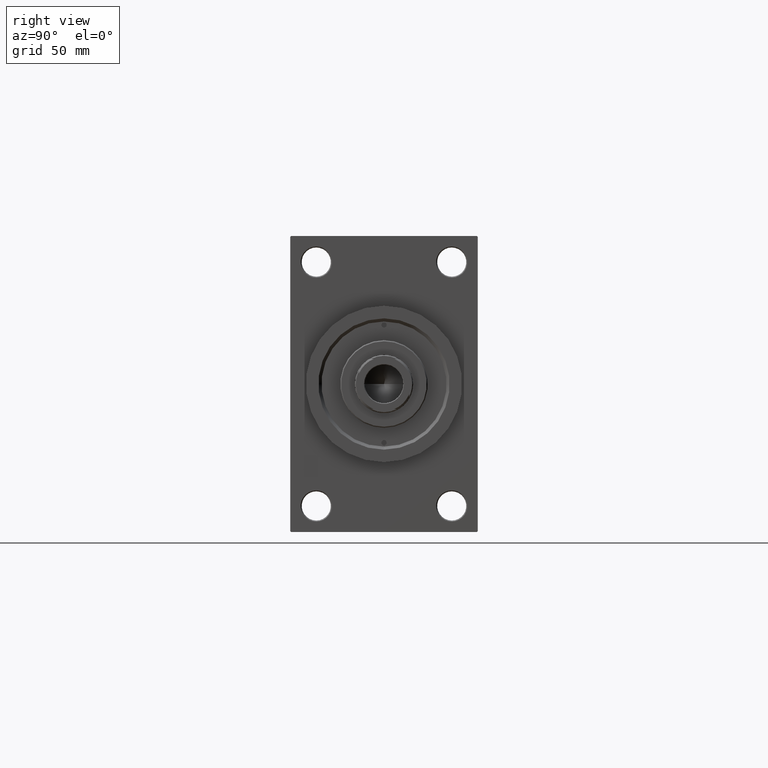
[diagram: clean part render]
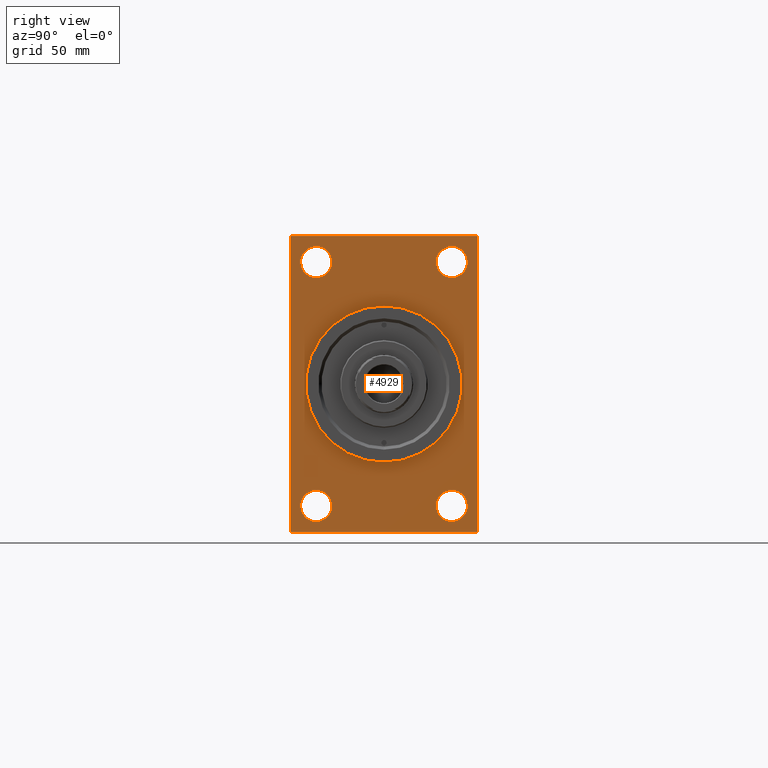
[diagram: same view with one face highlighted and labeled with its STEP entity id]
A machine part, right view. The second image highlights one B-rep face of the part: STEP entity #4929.
In plain terms, the highlighted planar face has unit normal (-1, 0, 0).
Its self-contained STEP definition (entity closure, byte-faithful):
#728 = DIRECTION ( 'NONE',  ( 0.000000000000000000, 0.000000000000000000, 1.000000000000000000 ) ) ;
#1526 = EDGE_CURVE ( 'NONE', #21739, #6571, #4567, .T. ) ;
#1562 = DIRECTION ( 'NONE',  ( -1.000000000000000000, 0.000000000000000000, -0.000000000000000000 ) ) ;
#1708 = ORIENTED_EDGE ( 'NONE', *, *, #24348, .T. ) ;
#2159 = CARTESIAN_POINT ( 'NONE',  ( 245.0000000000000000, 4.592425496802575156E-15, -37.50000000000000711 ) ) ;
#2413 = FACE_BOUND ( 'NONE', #41799, .T. ) ;
#2835 = CARTESIAN_POINT ( 'NONE',  ( 245.0000000000000000, -44.99999999999997158, 70.99999999999998579 ) ) ;
#3256 = AXIS2_PLACEMENT_3D ( 'NONE', #23631, #38260, #20037 ) ;
#3400 = DIRECTION ( 'NONE',  ( 0.000000000000000000, 0.000000000000000000, 1.000000000000000000 ) ) ;
#3614 = AXIS2_PLACEMENT_3D ( 'NONE', #6248, #28289, #21109 ) ;
#3644 = DIRECTION ( 'NONE',  ( -1.000000000000000000, 0.000000000000000000, -0.000000000000000000 ) ) ;
#4567 = LINE ( 'NONE', #15820, #41725 ) ;
#4610 = DIRECTION ( 'NONE',  ( -1.000000000000000000, 0.000000000000000000, -0.000000000000000000 ) ) ;
#4696 = VECTOR ( 'NONE', #6683, 1000.000000000000000 ) ;
#4812 = VERTEX_POINT ( 'NONE', #24150 ) ;
#4929 = ADVANCED_FACE ( 'NONE', ( #34886, #31512, #11478, #39104, #2413, #46291 ), #17515, .F. ) ;
#5095 = EDGE_CURVE ( 'NONE', #32971, #25976, #44963, .T. ) ;
#5534 = ORIENTED_EDGE ( 'NONE', *, *, #17239, .T. ) ;
#6248 = CARTESIAN_POINT ( 'NONE',  ( 245.0000000000000000, 0.000000000000000000, 0.000000000000000000 ) ) ;
#6312 = DIRECTION ( 'NONE',  ( 1.000000000000000000, 0.000000000000000000, 0.000000000000000000 ) ) ;
#6399 = ORIENTED_EDGE ( 'NONE', *, *, #40926, .T. ) ;
#6461 = VECTOR ( 'NONE', #26910, 1000.000000000000114 ) ;
#6571 = VERTEX_POINT ( 'NONE', #41821 ) ;
#6683 = DIRECTION ( 'NONE',  ( 0.000000000000000000, 0.000000000000000000, -1.000000000000000000 ) ) ;
#6778 = CARTESIAN_POINT ( 'NONE',  ( 245.0000000000000000, -44.49999999999997158, -71.00000000000000000 ) ) ;
#6927 = CIRCLE ( 'NONE', #29129, 7.499999999999965361 ) ;
#7197 = ORIENTED_EDGE ( 'NONE', *, *, #10644, .T. ) ;
#7698 = DIRECTION ( 'NONE',  ( -0.000000000000000000, 0.7071067811865376918, 0.7071067811865573427 ) ) ;
#7784 = VERTEX_POINT ( 'NONE', #35702 ) ;
#7973 = DIRECTION ( 'NONE',  ( -1.000000000000000000, 0.000000000000000000, -0.000000000000000000 ) ) ;
#8411 = LINE ( 'NONE', #37657, #29152 ) ;
#8822 = EDGE_CURVE ( 'NONE', #16542, #7784, #21311, .T. ) ;
#8855 = ORIENTED_EDGE ( 'NONE', *, *, #1526, .F. ) ;
#9197 = CARTESIAN_POINT ( 'NONE',  ( 245.0000000000000000, 32.50000000000000711, -65.99999999999997158 ) ) ;
#9406 = CARTESIAN_POINT ( 'NONE',  ( 245.0000000000000000, 0.000000000000000000, 37.50000000000000711 ) ) ;
#9510 = CARTESIAN_POINT ( 'NONE',  ( 245.0000000000000000, -44.50000000000000000, -71.00000000000000000 ) ) ;
#9732 = AXIS2_PLACEMENT_3D ( 'NONE', #40765, #22543, #728 ) ;
#9790 = DIRECTION ( 'NONE',  ( -1.000000000000000000, 0.000000000000000000, -0.000000000000000000 ) ) ;
#9948 = CARTESIAN_POINT ( 'NONE',  ( 245.0000000000000000, 44.50000000000006395, -70.99999999999998579 ) ) ;
#10149 = CARTESIAN_POINT ( 'NONE',  ( 245.0000000000000000, 45.00000000000001421, -70.99999999999998579 ) ) ;
#10644 = EDGE_CURVE ( 'NONE', #15797, #28914, #45762, .T. ) ;
#11342 = CIRCLE ( 'NONE', #42745, 37.50000000000000711 ) ;
#11478 = FACE_BOUND ( 'NONE', #42357, .T. ) ;
#12884 = EDGE_CURVE ( 'NONE', #28914, #15797, #22123, .T. ) ;
#13354 = ORIENTED_EDGE ( 'NONE', *, *, #5095, .T. ) ;
#13725 = AXIS2_PLACEMENT_3D ( 'NONE', #18760, #4610, #33863 ) ;
#14057 = VECTOR ( 'NONE', #38751, 1000.000000000000114 ) ;
#14081 = CARTESIAN_POINT ( 'NONE',  ( 245.0000000000000000, 44.50000000000007105, 71.00000000000000000 ) ) ;
#14186 = VERTEX_POINT ( 'NONE', #29954 ) ;
#14833 = DIRECTION ( 'NONE',  ( 0.000000000000000000, -1.000000000000000000, -1.541976423090495387E-16 ) ) ;
#15797 = VERTEX_POINT ( 'NONE', #9197 ) ;
#15820 = CARTESIAN_POINT ( 'NONE',  ( 245.0000000000000000, 45.00000000000002132, 71.00000000000000000 ) ) ;
#16036 = VERTEX_POINT ( 'NONE', #9948 ) ;
#16542 = VERTEX_POINT ( 'NONE', #14081 ) ;
#17182 = VERTEX_POINT ( 'NONE', #36276 ) ;
#17185 = VERTEX_POINT ( 'NONE', #6778 ) ;
#17236 = CARTESIAN_POINT ( 'NONE',  ( 245.0000000000000000, -44.99999999999997158, 70.50000000000000000 ) ) ;
#17239 = EDGE_CURVE ( 'NONE', #14186, #35605, #6927, .T. ) ;
#17515 = PLANE ( 'NONE',  #3614 ) ;
#17978 = DIRECTION ( 'NONE',  ( 0.000000000000000000, 0.000000000000000000, 1.000000000000000000 ) ) ;
#18193 = EDGE_CURVE ( 'NONE', #7784, #42201, #43649, .T. ) ;
#18685 = DIRECTION ( 'NONE',  ( -1.000000000000000000, 0.000000000000000000, -0.000000000000000000 ) ) ;
#18760 = CARTESIAN_POINT ( 'NONE',  ( 245.0000000000000000, -32.50000000000000000, -58.49999999999999289 ) ) ;
#18838 = CARTESIAN_POINT ( 'NONE',  ( 245.0000000000000000, -32.50000000000000000, 58.50000000000000711 ) ) ;
#19007 = EDGE_CURVE ( 'NONE', #42201, #20212, #35464, .T. ) ;
#19502 = EDGE_CURVE ( 'NONE', #25976, #32971, #23080, .T. ) ;
#19697 = ORIENTED_EDGE ( 'NONE', *, *, #8822, .T. ) ;
#19846 = ORIENTED_EDGE ( 'NONE', *, *, #32380, .T. ) ;
#20037 = DIRECTION ( 'NONE',  ( 0.000000000000000000, 0.000000000000000000, 1.000000000000000000 ) ) ;
#20104 = CARTESIAN_POINT ( 'NONE',  ( 245.0000000000000000, 45.00000000000002132, 70.50000000000004263 ) ) ;
#20212 = VERTEX_POINT ( 'NONE', #21007 ) ;
#20221 = EDGE_LOOP ( 'NONE', ( #1708, #19846 ) ) ;
#20303 = ORIENTED_EDGE ( 'NONE', *, *, #19502, .T. ) ;
#20811 = DIRECTION ( 'NONE',  ( 0.000000000000000000, 0.000000000000000000, 1.000000000000000000 ) ) ;
#20974 = CARTESIAN_POINT ( 'NONE',  ( 245.0000000000000000, 0.000000000000000000, 0.000000000000000000 ) ) ;
#20976 = ORIENTED_EDGE ( 'NONE', *, *, #18193, .T. ) ;
#21007 = CARTESIAN_POINT ( 'NONE',  ( 245.0000000000000000, -44.99999999999997158, -70.50000000000000000 ) ) ;
#21109 = DIRECTION ( 'NONE',  ( -0.000000000000000000, 0.000000000000000000, 1.000000000000000000 ) ) ;
#21311 = LINE ( 'NONE', #40021, #40474 ) ;
#21533 = VECTOR ( 'NONE', #32863, 1000.000000000000000 ) ;
#21537 = CARTESIAN_POINT ( 'NONE',  ( 245.0000000000000000, -32.50000000000000000, 65.99999999999997158 ) ) ;
#21739 = VERTEX_POINT ( 'NONE', #20104 ) ;
#22123 = CIRCLE ( 'NONE', #32075, 7.499999999999978684 ) ;
#22406 = EDGE_LOOP ( 'NONE', ( #13354, #20303 ) ) ;
#22526 = CARTESIAN_POINT ( 'NONE',  ( 245.0000000000000000, 32.50000000000000711, 65.99999999999997158 ) ) ;
#22543 = DIRECTION ( 'NONE',  ( -1.000000000000000000, 0.000000000000000000, -0.000000000000000000 ) ) ;
#22824 = DIRECTION ( 'NONE',  ( 0.000000000000000000, 0.000000000000000000, 1.000000000000000000 ) ) ;
#23080 = CIRCLE ( 'NONE', #41453, 7.499999999999965361 ) ;
#23174 = EDGE_CURVE ( 'NONE', #39974, #34188, #11342, .T. ) ;
#23410 = LINE ( 'NONE', #9510, #14057 ) ;
#23631 = CARTESIAN_POINT ( 'NONE',  ( 245.0000000000000000, 32.50000000000000711, 58.50000000000000711 ) ) ;
#24150 = CARTESIAN_POINT ( 'NONE',  ( 245.0000000000000000, -32.50000000000000000, -65.99999999999995737 ) ) ;
#24348 = EDGE_CURVE ( 'NONE', #4812, #17182, #25194, .T. ) ;
#24761 = LINE ( 'NONE', #10149, #32338 ) ;
#25194 = CIRCLE ( 'NONE', #13725, 7.499999999999985789 ) ;
#25976 = VERTEX_POINT ( 'NONE', #21537 ) ;
#26220 = AXIS2_PLACEMENT_3D ( 'NONE', #39554, #18685, #17978 ) ;
#26910 = DIRECTION ( 'NONE',  ( 0.000000000000000000, -0.7071067811865474617, 0.7071067811865474617 ) ) ;
#28289 = DIRECTION ( 'NONE',  ( -1.000000000000000000, 0.000000000000000000, -0.000000000000000000 ) ) ;
#28914 = VERTEX_POINT ( 'NONE', #35872 ) ;
#29129 = AXIS2_PLACEMENT_3D ( 'NONE', #38149, #7973, #22824 ) ;
#29152 = VECTOR ( 'NONE', #7698, 1000.000000000000114 ) ;
#29433 = EDGE_CURVE ( 'NONE', #16036, #6571, #8411, .T. ) ;
#29815 = ORIENTED_EDGE ( 'NONE', *, *, #29433, .T. ) ;
#29954 = CARTESIAN_POINT ( 'NONE',  ( 245.0000000000000000, 32.50000000000000711, 51.00000000000004263 ) ) ;
#30072 = ORIENTED_EDGE ( 'NONE', *, *, #36137, .F. ) ;
#30644 = EDGE_LOOP ( 'NONE', ( #5534, #45215 ) ) ;
#30801 = CIRCLE ( 'NONE', #3256, 7.499999999999965361 ) ;
#31217 = CARTESIAN_POINT ( 'NONE',  ( 245.0000000000000000, -32.50000000000000000, 51.00000000000004263 ) ) ;
#31254 = CARTESIAN_POINT ( 'NONE',  ( 245.0000000000000000, 0.000000000000000000, 0.000000000000000000 ) ) ;
#31512 = FACE_BOUND ( 'NONE', #20221, .T. ) ;
#31922 = EDGE_CURVE ( 'NONE', #35605, #14186, #30801, .T. ) ;
#31927 = EDGE_CURVE ( 'NONE', #34188, #39974, #38477, .T. ) ;
#32075 = AXIS2_PLACEMENT_3D ( 'NONE', #39510, #9790, #20811 ) ;
#32338 = VECTOR ( 'NONE', #47067, 1000.000000000000000 ) ;
#32380 = EDGE_CURVE ( 'NONE', #17182, #4812, #36946, .T. ) ;
#32624 = CARTESIAN_POINT ( 'NONE',  ( 245.0000000000000000, -44.99999999999997158, 70.50000000000000000 ) ) ;
#32863 = DIRECTION ( 'NONE',  ( -0.000000000000000000, -0.7071067811865622277, -0.7071067811865328068 ) ) ;
#32971 = VERTEX_POINT ( 'NONE', #31217 ) ;
#33478 = DIRECTION ( 'NONE',  ( 0.000000000000000000, 0.000000000000000000, 1.000000000000000000 ) ) ;
#33802 = ORIENTED_EDGE ( 'NONE', *, *, #38632, .T. ) ;
#33863 = DIRECTION ( 'NONE',  ( 0.000000000000000000, 0.000000000000000000, 1.000000000000000000 ) ) ;
#34188 = VERTEX_POINT ( 'NONE', #2159 ) ;
#34820 = LINE ( 'NONE', #37941, #6461 ) ;
#34842 = ORIENTED_EDGE ( 'NONE', *, *, #31927, .F. ) ;
#34886 = FACE_BOUND ( 'NONE', #22406, .T. ) ;
#35464 = LINE ( 'NONE', #2835, #4696 ) ;
#35605 = VERTEX_POINT ( 'NONE', #22526 ) ;
#35702 = CARTESIAN_POINT ( 'NONE',  ( 245.0000000000000000, -44.49999999999995026, 70.99999999999998579 ) ) ;
#35872 = CARTESIAN_POINT ( 'NONE',  ( 245.0000000000000000, 32.50000000000000711, -51.00000000000001421 ) ) ;
#36137 = EDGE_CURVE ( 'NONE', #16036, #17185, #24761, .T. ) ;
#36194 = AXIS2_PLACEMENT_3D ( 'NONE', #20974, #46874, #43761 ) ;
#36266 = CARTESIAN_POINT ( 'NONE',  ( 245.0000000000000000, 32.50000000000000711, -58.50000000000000000 ) ) ;
#36276 = CARTESIAN_POINT ( 'NONE',  ( 245.0000000000000000, -32.50000000000000000, -51.00000000000000711 ) ) ;
#36946 = CIRCLE ( 'NONE', #26220, 7.499999999999985789 ) ;
#37153 = ORIENTED_EDGE ( 'NONE', *, *, #23174, .F. ) ;
#37657 = CARTESIAN_POINT ( 'NONE',  ( 245.0000000000000000, 45.00000000000001421, -70.50000000000001421 ) ) ;
#37941 = CARTESIAN_POINT ( 'NONE',  ( 245.0000000000000000, 44.50000000000007105, 71.00000000000000000 ) ) ;
#38149 = CARTESIAN_POINT ( 'NONE',  ( 245.0000000000000000, 32.50000000000000711, 58.50000000000000711 ) ) ;
#38260 = DIRECTION ( 'NONE',  ( -1.000000000000000000, 0.000000000000000000, -0.000000000000000000 ) ) ;
#38477 = CIRCLE ( 'NONE', #36194, 37.50000000000000711 ) ;
#38632 = EDGE_CURVE ( 'NONE', #20212, #17185, #23410, .T. ) ;
#38751 = DIRECTION ( 'NONE',  ( 0.000000000000000000, 0.7071067811865376918, -0.7071067811865573427 ) ) ;
#39104 = FACE_BOUND ( 'NONE', #30644, .T. ) ;
#39510 = CARTESIAN_POINT ( 'NONE',  ( 245.0000000000000000, 32.50000000000000711, -58.50000000000000000 ) ) ;
#39554 = CARTESIAN_POINT ( 'NONE',  ( 245.0000000000000000, -32.50000000000000000, -58.49999999999999289 ) ) ;
#39725 = ORIENTED_EDGE ( 'NONE', *, *, #12884, .T. ) ;
#39974 = VERTEX_POINT ( 'NONE', #9406 ) ;
#40021 = CARTESIAN_POINT ( 'NONE',  ( 245.0000000000000000, 45.00000000000002132, 71.00000000000000000 ) ) ;
#40474 = VECTOR ( 'NONE', #14833, 1000.000000000000000 ) ;
#40765 = CARTESIAN_POINT ( 'NONE',  ( 245.0000000000000000, -32.50000000000000000, 58.50000000000000711 ) ) ;
#40926 = EDGE_CURVE ( 'NONE', #21739, #16542, #34820, .T. ) ;
#41453 = AXIS2_PLACEMENT_3D ( 'NONE', #18838, #1562, #33478 ) ;
#41725 = VECTOR ( 'NONE', #45075, 1000.000000000000000 ) ;
#41799 = EDGE_LOOP ( 'NONE', ( #37153, #34842 ) ) ;
#41811 = DIRECTION ( 'NONE',  ( 0.000000000000000000, 0.000000000000000000, -1.000000000000000000 ) ) ;
#41821 = CARTESIAN_POINT ( 'NONE',  ( 245.0000000000000000, 45.00000000000001421, -70.50000000000001421 ) ) ;
#41971 = ORIENTED_EDGE ( 'NONE', *, *, #19007, .T. ) ;
#42201 = VERTEX_POINT ( 'NONE', #17236 ) ;
#42357 = EDGE_LOOP ( 'NONE', ( #7197, #39725 ) ) ;
#42745 = AXIS2_PLACEMENT_3D ( 'NONE', #31254, #6312, #41811 ) ;
#43649 = LINE ( 'NONE', #32624, #21533 ) ;
#43761 = DIRECTION ( 'NONE',  ( 0.000000000000000000, 0.000000000000000000, -1.000000000000000000 ) ) ;
#44963 = CIRCLE ( 'NONE', #9732, 7.499999999999965361 ) ;
#45018 = AXIS2_PLACEMENT_3D ( 'NONE', #36266, #3644, #3400 ) ;
#45075 = DIRECTION ( 'NONE',  ( 0.000000000000000000, -4.886545002751570165E-17, -1.000000000000000000 ) ) ;
#45215 = ORIENTED_EDGE ( 'NONE', *, *, #31922, .T. ) ;
#45762 = CIRCLE ( 'NONE', #45018, 7.499999999999978684 ) ;
#46291 = FACE_OUTER_BOUND ( 'NONE', #47054, .T. ) ;
#46874 = DIRECTION ( 'NONE',  ( 1.000000000000000000, 0.000000000000000000, 0.000000000000000000 ) ) ;
#47054 = EDGE_LOOP ( 'NONE', ( #41971, #33802, #30072, #29815, #8855, #6399, #19697, #20976 ) ) ;
#47067 = DIRECTION ( 'NONE',  ( 0.000000000000000000, -1.000000000000000000, -1.541976423090495633E-16 ) ) ;